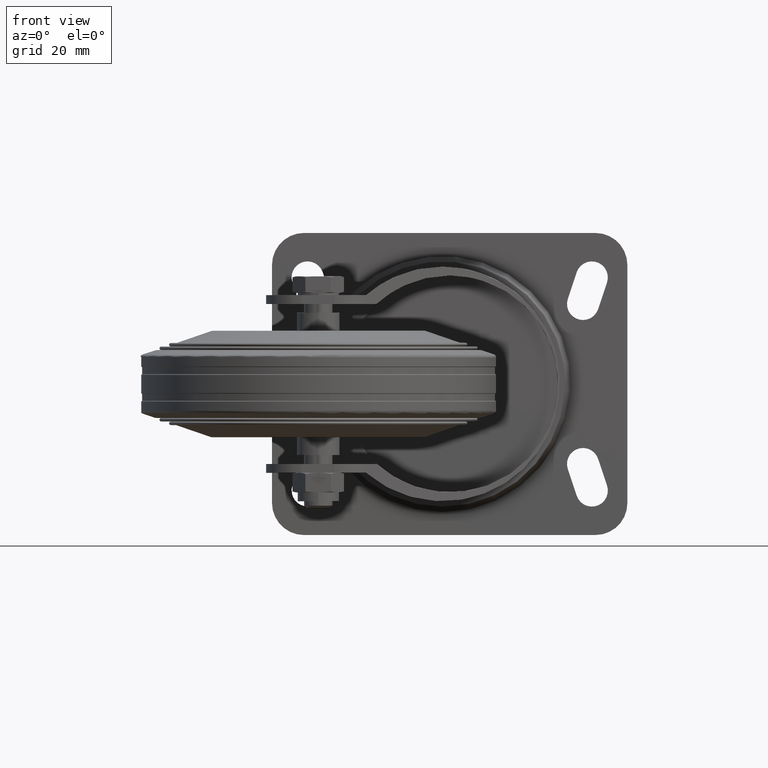
[diagram: clean part render]
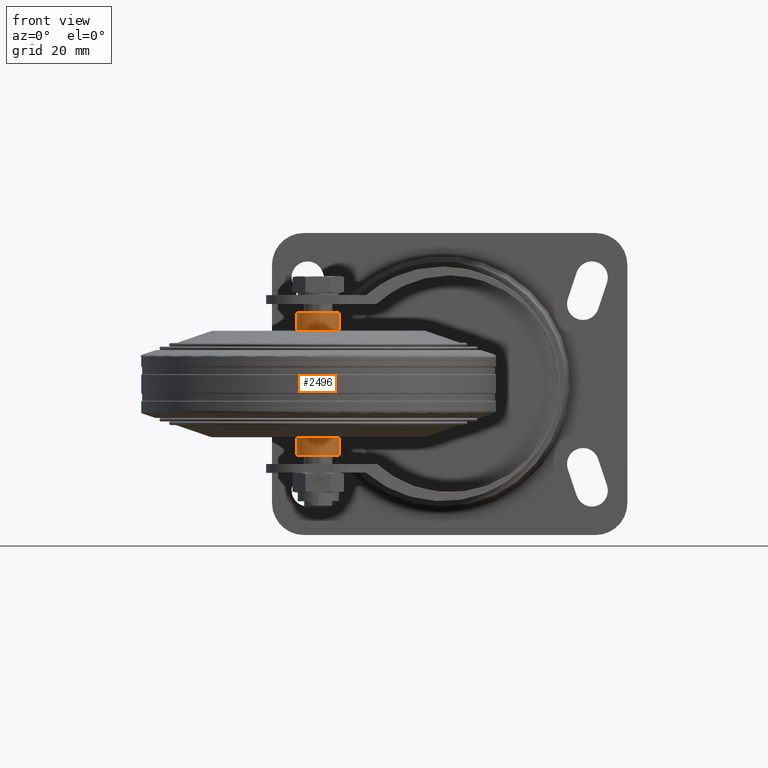
[diagram: same view with one face highlighted and labeled with its STEP entity id]
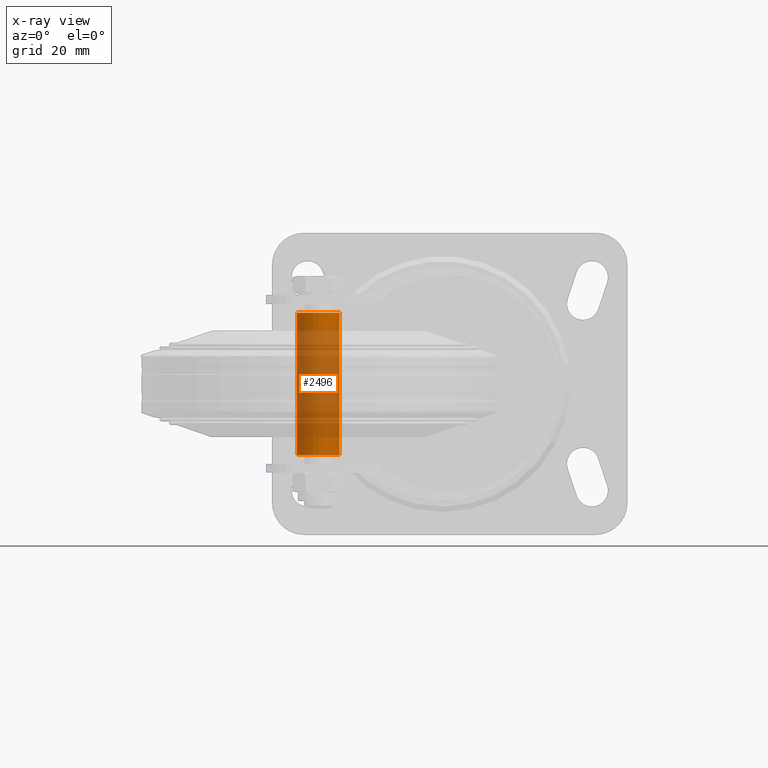
[diagram: x-ray of the same camera — body ghosted, the highlighted face saturated]
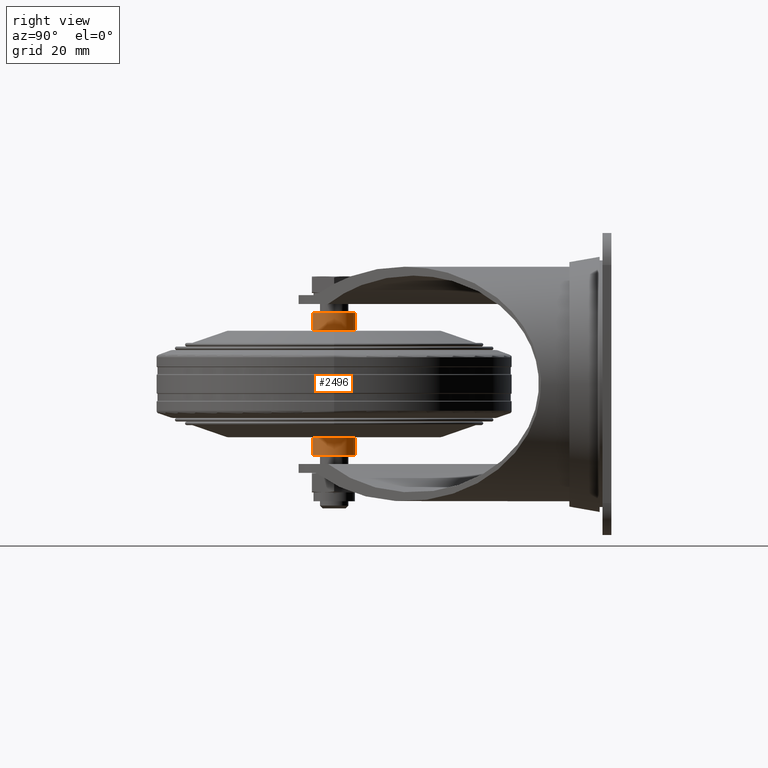
[diagram: same view with one face highlighted and labeled with its STEP entity id]
A machine part, front view. The second image highlights one B-rep face of the part: STEP entity #2496.
The next image is the same camera in x-ray: the body ghosted, the highlighted face saturated — about 75% of this face is hidden behind the body in this view.
A second angle (right view) of the same face is appended — the face is thin or edge-on in the first view.
In plain terms, the highlighted cylindrical surface (bore or boss wall) has radius 6 mm, axis along (0, 0, -1).
Its self-contained STEP definition (entity closure, byte-faithful):
#228=LINE('',#4126,#355);
#355=VECTOR('',#3224,6.);
#475=CYLINDRICAL_SURFACE('',#2798,6.);
#537=FACE_OUTER_BOUND('',#710,.T.);
#710=EDGE_LOOP('',(#1814,#1815,#1816,#1817));
#903=CIRCLE('',#2794,6.);
#905=CIRCLE('',#2797,6.);
#1145=VERTEX_POINT('',#4118);
#1147=VERTEX_POINT('',#4123);
#1393=EDGE_CURVE('',#1145,#1145,#903,.T.);
#1395=EDGE_CURVE('',#1147,#1147,#905,.T.);
#1396=EDGE_CURVE('',#1147,#1145,#228,.T.);
#1814=ORIENTED_EDGE('',*,*,#1395,.F.);
#1815=ORIENTED_EDGE('',*,*,#1396,.T.);
#1816=ORIENTED_EDGE('',*,*,#1393,.T.);
#1817=ORIENTED_EDGE('',*,*,#1396,.F.);
#2496=ADVANCED_FACE('',(#537),#475,.T.);
#2794=AXIS2_PLACEMENT_3D('',#4119,#3214,#3215);
#2797=AXIS2_PLACEMENT_3D('',#4124,#3220,#3221);
#2798=AXIS2_PLACEMENT_3D('',#4125,#3222,#3223);
#3214=DIRECTION('center_axis',(1.,0.,0.));
#3215=DIRECTION('ref_axis',(0.,0.,-1.));
#3220=DIRECTION('center_axis',(1.,0.,0.));
#3221=DIRECTION('ref_axis',(0.,0.,-1.));
#3222=DIRECTION('center_axis',(1.,0.,0.));
#3223=DIRECTION('ref_axis',(0.,0.,-1.));
#3224=DIRECTION('',(-1.,0.,0.));
#4118=CARTESIAN_POINT('',(10.3,-7.34788079488412E-16,6.));
#4119=CARTESIAN_POINT('Origin',(10.3,0.,0.));
#4123=CARTESIAN_POINT('',(50.3,-7.34788079488412E-16,6.));
#4124=CARTESIAN_POINT('Origin',(50.3,0.,0.));
#4125=CARTESIAN_POINT('Origin',(50.3,0.,0.));
#4126=CARTESIAN_POINT('',(50.3,-7.34788079488412E-16,6.));